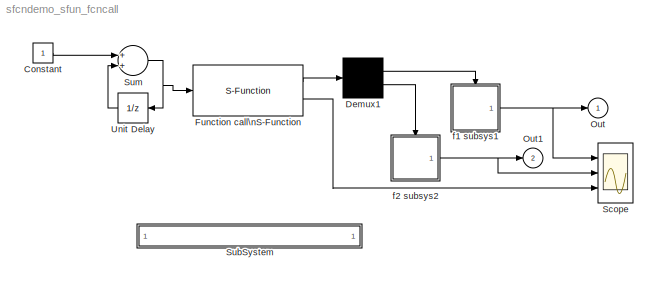
MODEL sfcndemo_sfun_fcncall
KIND model
BLOCK [Constant] Constant
BLOCK [Demux] Demux1
  Outputs = 2
  Ports = [1, 2]
BLOCK [S-Function] Function call\nS-Function
  FunctionName = sfun_fcncall
  MaskDescription = This is a S-function block which is configure to execute \"function-call\" subsystems on the 1st and 3rd output element of the output port. Note when performing function-calls, these can only be done through the 1st output port.
  MaskIconFrame = on
  MaskIconOpaque = on
  MaskIconRotate = none
  MaskIconUnits = autoscale
  MaskType = S-function: sfun_fcncall
  Ports = [1, 2]
BLOCK [Outport] Out
  IconDisplay = Port number
  InitialOutput = 0
BLOCK [Outport] Out1
  IconDisplay = Port number
  InitialOutput = 0
  Port = 2
BLOCK [Scope] Scope
  DataFormat = StructureWithTime
  NumInputPorts = 3
  Ports = [3]
  TimeRange = 1
  YMax = 1~10~10
  YMin = 0~0~0
BLOCK [SubSystem] SubSystem
  MaskDisplay = disp('matlabroot<path>');
  MaskIconFrame = on
  MaskIconOpaque = on
  MaskIconRotate = none
  MaskIconUnits = autoscale
  MinAlgLoopOccurrences = off
  OpenFcn = edit(fullfile(matlabroot,'simulink','src','sfun_fcncall.c'))
  Ports = []
  PropExecContextAcrossSSBoundary = on
  RTWSystemCode = Auto
  TreatAsAtomicUnit = off
BLOCK [Sum] Sum
  Ports = [2, 1]
BLOCK [UnitDelay] Unit Delay
  SampleTime = .1
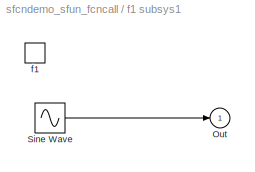
BLOCK [SubSystem] f1 subsys1
  MinAlgLoopOccurrences = off
  Ports = [0, 1, 0, 1]
  PropExecContextAcrossSSBoundary = on
  RTWSystemCode = Auto
  TreatAsAtomicUnit = on
BLOCK [Outport] f1 subsys1/Out
  IconDisplay = Port number
  InitialOutput = 0
BLOCK [Sin] f1 subsys1/Sine Wave
  Ports = [0, 1]
  SineType = Time based
BLOCK [TriggerPort] f1 subsys1/f1
  Ports = []
  TriggerType = function-call
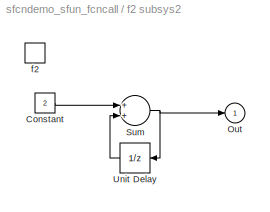
BLOCK [SubSystem] f2 subsys2
  MinAlgLoopOccurrences = off
  Ports = [0, 1, 0, 1]
  PropExecContextAcrossSSBoundary = on
  RTWSystemCode = Auto
  TreatAsAtomicUnit = on
BLOCK [Constant] f2 subsys2/Constant
  Value = 2
BLOCK [Outport] f2 subsys2/Out
  IconDisplay = Port number
  InitialOutput = 0
BLOCK [Sum] f2 subsys2/Sum
  Ports = [2, 1]
BLOCK [UnitDelay] f2 subsys2/Unit Delay
  SampleTime = -1
BLOCK [TriggerPort] f2 subsys2/f2
  Ports = []
  TriggerType = function-call
LINE Constant:1 -> Sum:1
LINE Demux1:1 -> f1 subsys1:trigger
LINE Demux1:2 -> f2 subsys2:trigger
LINE Function call\nS-Function:1 -> Demux1:1
LINE Function call\nS-Function:2 -> Scope:3
NET Sum:1 -> Function call\nS-Function:1, Unit Delay:1
LINE Unit Delay:1 -> Sum:2
LINE f1 subsys1/Sine Wave:1 -> f1 subsys1/Out:1
NET f1 subsys1:1 -> Out:1, Scope:1
LINE f2 subsys2/Constant:1 -> f2 subsys2/Sum:1
NET f2 subsys2/Sum:1 -> f2 subsys2/Out:1, f2 subsys2/Unit Delay:1
LINE f2 subsys2/Unit Delay:1 -> f2 subsys2/Sum:2
NET f2 subsys2:1 -> Out1:1, Scope:2
note: NET lines group one-source signal fan-out (src -> all destinations, sorted); 1:1 wires keep LINE
note: 1 file-system path scrubbed to <path> (not preserved elsewhere — flat text is the only slx artifact)
